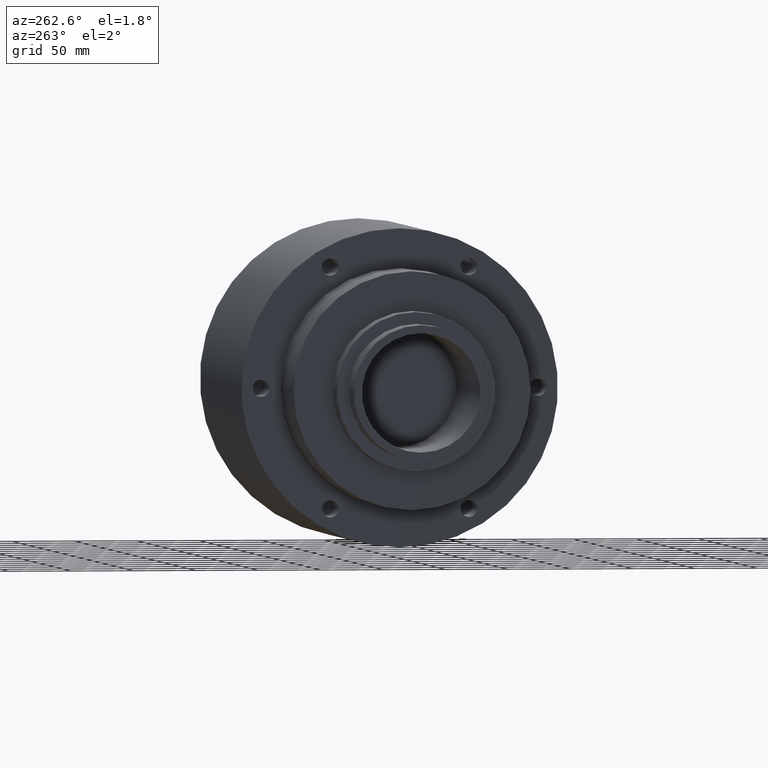
[diagram: clean part render]
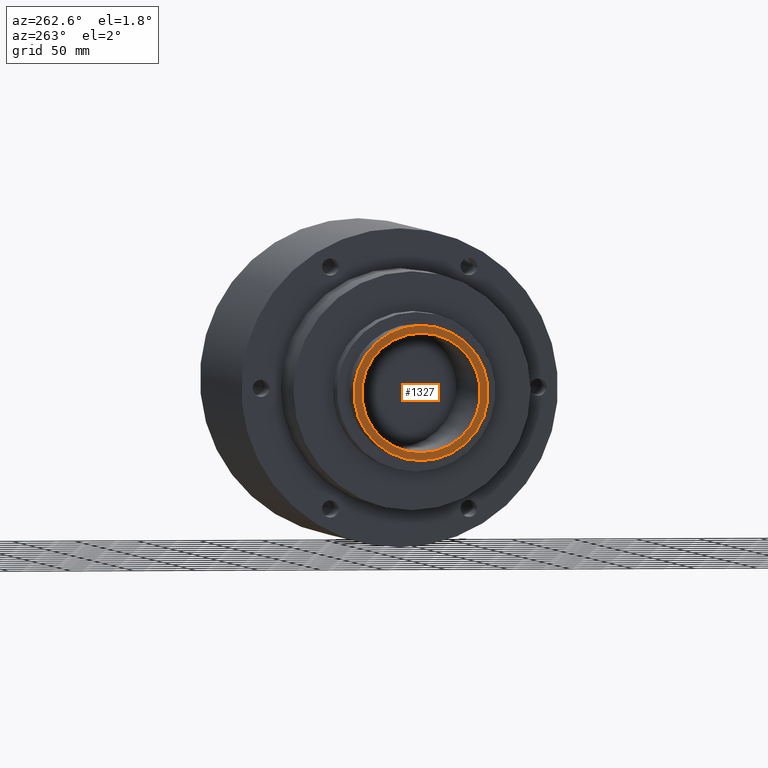
[diagram: same view with one face highlighted and labeled with its STEP entity id]
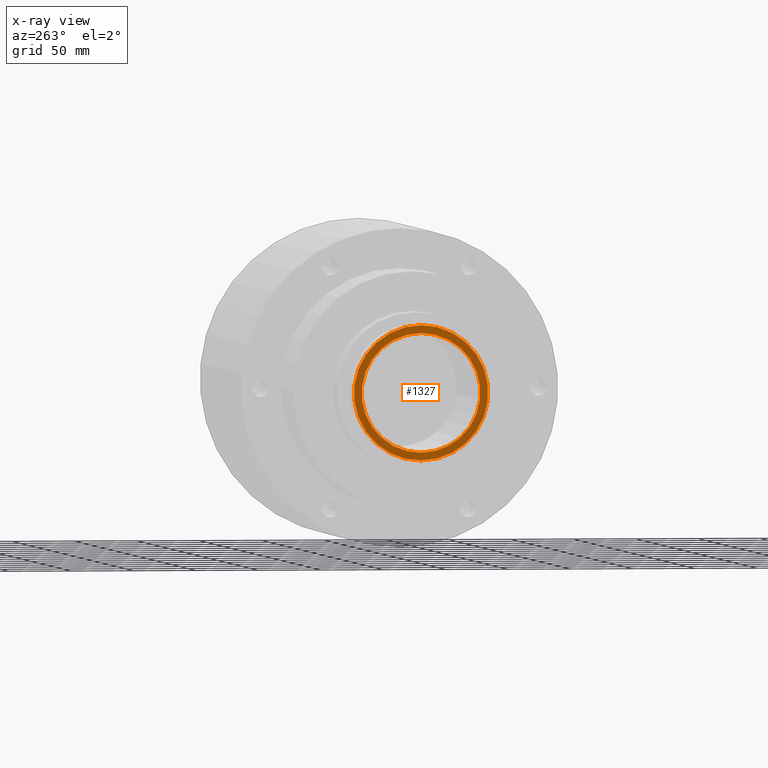
[diagram: x-ray of the same camera — body ghosted, the highlighted face saturated]
A machine part, auxiliary view. The second image highlights one B-rep face of the part: STEP entity #1327.
The next image is the same camera in x-ray: the body ghosted, the highlighted face saturated — about 0% of this face is hidden behind the body in this view.
In plain terms, the highlighted planar face has unit normal (1, 0, 0).
Its self-contained STEP definition (entity closure, byte-faithful):
#194 = FACE_OUTER_BOUND ( 'NONE', #565, .T. ) ;
#197 = FACE_BOUND ( 'NONE', #567, .T. ) ;
#565 = EDGE_LOOP ( 'NONE', ( #1473, #1474 ) ) ;
#567 = EDGE_LOOP ( 'NONE', ( #1475, #1476 ) ) ;
#651 = VERTEX_POINT ( 'NONE', #769 ) ;
#652 = VERTEX_POINT ( 'NONE', #770 ) ;
#653 = VERTEX_POINT ( 'NONE', #771 ) ;
#654 = VERTEX_POINT ( 'NONE', #772 ) ;
#769 = CARTESIAN_POINT ( 'NONE',  ( -2.315668025879473100E-016, 2.296212748401287500E-016, 1.875000000000000400 ) ) ;
#770 = CARTESIAN_POINT ( 'NONE',  ( -2.315668025879473100E-016, 0.0000000000000000000, -1.875000000000000400 ) ) ;
#771 = CARTESIAN_POINT ( 'NONE',  ( 0.0000000000000000000, 2.599312831190256900E-016, 2.119999999999999700 ) ) ;
#772 = CARTESIAN_POINT ( 'NONE',  ( 0.0000000000000000000, 0.0000000000000000000, -2.119999999999999700 ) ) ;
#921 = CARTESIAN_POINT ( 'NONE',  ( 0.0000000000000000000, 0.0000000000000000000, 0.0000000000000000000 ) ) ;
#922 = DIRECTION ( 'NONE',  ( -1.000000000000000000, -0.0000000000000000000, -0.0000000000000000000 ) ) ;
#923 = DIRECTION ( 'NONE',  ( 0.0000000000000000000, 0.0000000000000000000, -1.000000000000000000 ) ) ;
#945 = CARTESIAN_POINT ( 'NONE',  ( 0.0000000000000000000, 0.0000000000000000000, 0.0000000000000000000 ) ) ;
#946 = DIRECTION ( 'NONE',  ( 1.000000000000000000, 0.0000000000000000000, 0.0000000000000000000 ) ) ;
#947 = DIRECTION ( 'NONE',  ( 0.0000000000000000000, 0.0000000000000000000, -1.000000000000000000 ) ) ;
#1007 = EDGE_CURVE ( 'NONE', #654, #653, #1700, .T. ) ;
#1015 = EDGE_CURVE ( 'NONE', #651, #652, #1708, .T. ) ;
#1094 = EDGE_CURVE ( 'NONE', #653, #654, #1820, .T. ) ;
#1100 = EDGE_CURVE ( 'NONE', #652, #651, #1827, .T. ) ;
#1217 = AXIS2_PLACEMENT_3D ( 'NONE', #921, #922, #923 ) ;
#1225 = AXIS2_PLACEMENT_3D ( 'NONE', #945, #946, #947 ) ;
#1273 = AXIS2_PLACEMENT_3D ( 'NONE', #2013, #2015, #2016 ) ;
#1277 = AXIS2_PLACEMENT_3D ( 'NONE', #2032, #2034, #2035 ) ;
#1327 = ADVANCED_FACE ( 'NONE', ( #194, #197 ), #2439, .F. ) ;
#1473 = ORIENTED_EDGE ( 'NONE', *, *, #1007, .T. ) ;
#1474 = ORIENTED_EDGE ( 'NONE', *, *, #1094, .T. ) ;
#1475 = ORIENTED_EDGE ( 'NONE', *, *, #1100, .T. ) ;
#1476 = ORIENTED_EDGE ( 'NONE', *, *, #1015, .T. ) ;
#1700 = CIRCLE ( 'NONE', #1217, 2.119999999999999700 ) ;
#1708 = CIRCLE ( 'NONE', #1225, 1.875000000000000400 ) ;
#1820 = CIRCLE ( 'NONE', #1273, 2.119999999999999700 ) ;
#1827 = CIRCLE ( 'NONE', #1277, 1.875000000000000400 ) ;
#2013 = CARTESIAN_POINT ( 'NONE',  ( 0.0000000000000000000, 0.0000000000000000000, 0.0000000000000000000 ) ) ;
#2015 = DIRECTION ( 'NONE',  ( -1.000000000000000000, -0.0000000000000000000, -0.0000000000000000000 ) ) ;
#2016 = DIRECTION ( 'NONE',  ( 0.0000000000000000000, 0.0000000000000000000, -1.000000000000000000 ) ) ;
#2032 = CARTESIAN_POINT ( 'NONE',  ( 0.0000000000000000000, 0.0000000000000000000, 0.0000000000000000000 ) ) ;
#2034 = DIRECTION ( 'NONE',  ( 1.000000000000000000, 0.0000000000000000000, 0.0000000000000000000 ) ) ;
#2035 = DIRECTION ( 'NONE',  ( 0.0000000000000000000, 0.0000000000000000000, -1.000000000000000000 ) ) ;
#2438 = CARTESIAN_POINT ( 'NONE',  ( 0.0000000000000000000, 0.0000000000000000000, 0.0000000000000000000 ) ) ;
#2439 = PLANE ( 'NONE',  #2636 ) ;
#2441 = DIRECTION ( 'NONE',  ( 1.000000000000000000, 0.0000000000000000000, 0.0000000000000000000 ) ) ;
#2442 = DIRECTION ( 'NONE',  ( 0.0000000000000000000, 0.0000000000000000000, -1.000000000000000000 ) ) ;
#2636 = AXIS2_PLACEMENT_3D ( 'NONE', #2438, #2441, #2442 ) ;